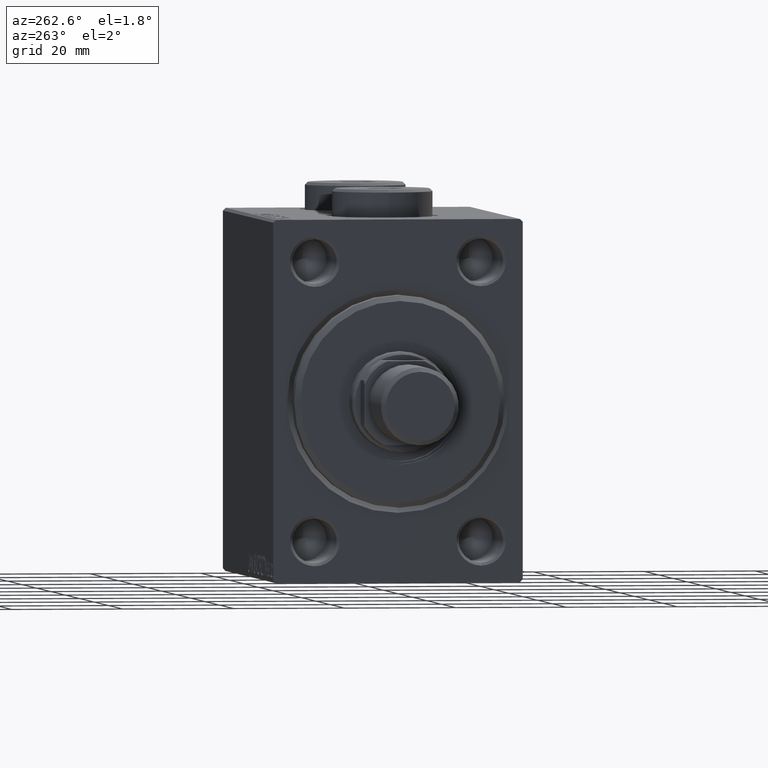
[diagram: clean part render]
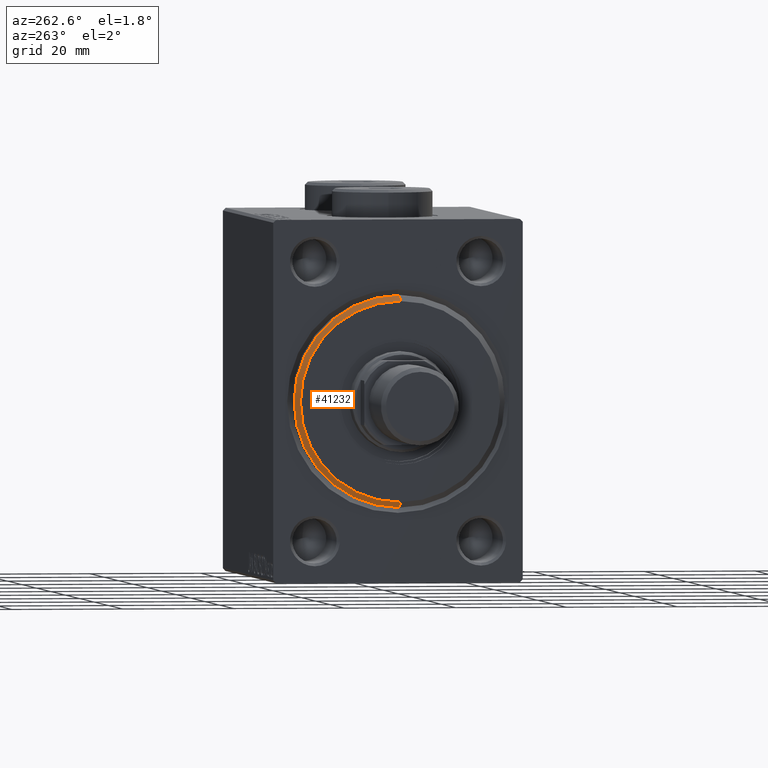
[diagram: same view with one face highlighted and labeled with its STEP entity id]
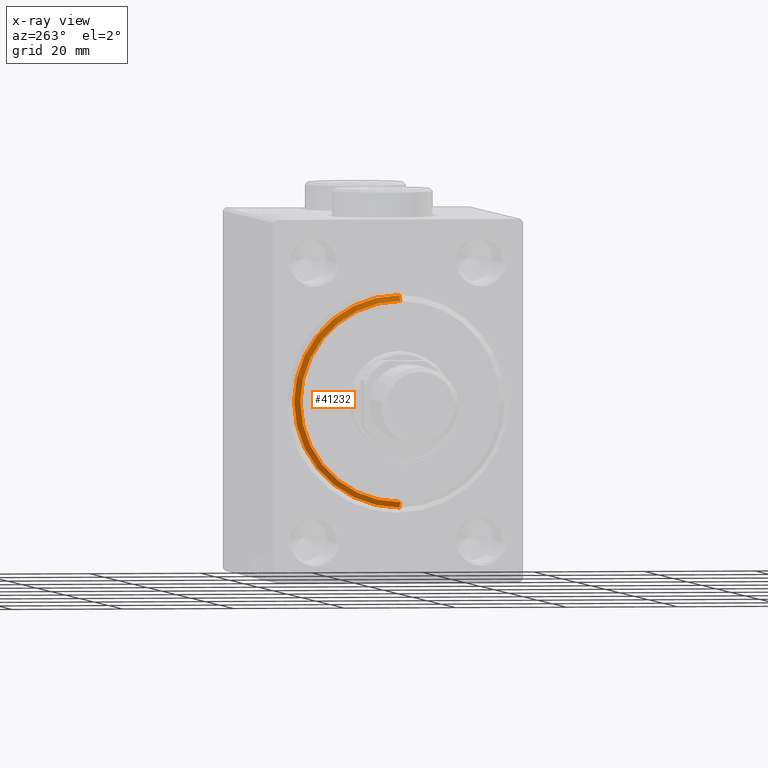
[diagram: x-ray of the same camera — body ghosted, the highlighted face saturated]
A machine part, auxiliary view. The second image highlights one B-rep face of the part: STEP entity #41232.
The next image is the same camera in x-ray: the body ghosted, the highlighted face saturated — about 0% of this face is hidden behind the body in this view.
In plain terms, the highlighted conical surface has half-angle 45 deg.
Its self-contained STEP definition (entity closure, byte-faithful):
#1627 = CARTESIAN_POINT ( 'NONE',  ( 3.000000000000000000, 0.000000000000000000, 17.99999999999999645 ) ) ;
#2000 = CARTESIAN_POINT ( 'NONE',  ( 1.999999999999992228, 0.000000000000000000, 19.00000000000000000 ) ) ;
#2620 = EDGE_CURVE ( 'NONE', #24899, #44869, #8514, .T. ) ;
#5644 = CARTESIAN_POINT ( 'NONE',  ( 3.000000000000000000, 0.000000000000000000, 0.000000000000000000 ) ) ;
#6792 = AXIS2_PLACEMENT_3D ( 'NONE', #5644, #29037, #27958 ) ;
#8514 = CIRCLE ( 'NONE', #10032, 17.99999999999999645 ) ;
#9020 = CARTESIAN_POINT ( 'NONE',  ( 3.000000000000000000, 0.000000000000000000, 0.000000000000000000 ) ) ;
#10032 = AXIS2_PLACEMENT_3D ( 'NONE', #9020, #34353, #40873 ) ;
#10272 = EDGE_CURVE ( 'NONE', #44869, #31092, #27904, .T. ) ;
#13203 = EDGE_CURVE ( 'NONE', #24899, #43748, #41185, .T. ) ;
#17901 = DIRECTION ( 'NONE',  ( -0.7071067811865487940, 8.659560562354918067E-17, -0.7071067811865463515 ) ) ;
#18967 = DIRECTION ( 'NONE',  ( 0.000000000000000000, 0.000000000000000000, -1.000000000000000000 ) ) ;
#21749 = CIRCLE ( 'NONE', #44003, 19.00000000000000000 ) ;
#21998 = CARTESIAN_POINT ( 'NONE',  ( 3.000000000000000000, 2.265596578422603002E-15, -17.99999999999999645 ) ) ;
#22602 = CARTESIAN_POINT ( 'NONE',  ( 3.000000000000000000, 0.000000000000000000, 17.99999999999999645 ) ) ;
#23278 = DIRECTION ( 'NONE',  ( -0.7071067811865487940, 0.000000000000000000, 0.7071067811865463515 ) ) ;
#24193 = CARTESIAN_POINT ( 'NONE',  ( 3.000000000000000000, 2.204364238465235033E-15, -17.99999999999999645 ) ) ;
#24899 = VERTEX_POINT ( 'NONE', #22602 ) ;
#27904 = LINE ( 'NONE', #24193, #33868 ) ;
#27958 = DIRECTION ( 'NONE',  ( 0.000000000000000000, 0.000000000000000000, 1.000000000000000000 ) ) ;
#28971 = CARTESIAN_POINT ( 'NONE',  ( 1.999999999999992228, 0.000000000000000000, 0.000000000000000000 ) ) ;
#29037 = DIRECTION ( 'NONE',  ( -1.000000000000000000, 0.000000000000000000, 0.000000000000000000 ) ) ;
#29055 = CONICAL_SURFACE ( 'NONE', #6792, 17.99999999999999645, 0.7853981633974466137 ) ;
#29462 = ORIENTED_EDGE ( 'NONE', *, *, #10272, .F. ) ;
#29971 = EDGE_LOOP ( 'NONE', ( #29462, #30052, #41270, #40551 ) ) ;
#30052 = ORIENTED_EDGE ( 'NONE', *, *, #2620, .F. ) ;
#31092 = VERTEX_POINT ( 'NONE', #38226 ) ;
#33868 = VECTOR ( 'NONE', #17901, 1000.000000000000000 ) ;
#34353 = DIRECTION ( 'NONE',  ( 1.000000000000000000, -0.000000000000000000, 0.000000000000000000 ) ) ;
#36176 = VECTOR ( 'NONE', #23278, 1000.000000000000000 ) ;
#37501 = FACE_OUTER_BOUND ( 'NONE', #29971, .T. ) ;
#38226 = CARTESIAN_POINT ( 'NONE',  ( 1.999999999999992228, 2.326828918379970970E-15, -19.00000000000000000 ) ) ;
#40551 = ORIENTED_EDGE ( 'NONE', *, *, #45812, .F. ) ;
#40873 = DIRECTION ( 'NONE',  ( 0.000000000000000000, 0.000000000000000000, -1.000000000000000000 ) ) ;
#41185 = LINE ( 'NONE', #1627, #36176 ) ;
#41232 = ADVANCED_FACE ( 'NONE', ( #37501 ), #29055, .T. ) ;
#41270 = ORIENTED_EDGE ( 'NONE', *, *, #13203, .T. ) ;
#43748 = VERTEX_POINT ( 'NONE', #2000 ) ;
#43844 = DIRECTION ( 'NONE',  ( -1.000000000000000000, 0.000000000000000000, 0.000000000000000000 ) ) ;
#44003 = AXIS2_PLACEMENT_3D ( 'NONE', #28971, #43844, #18967 ) ;
#44869 = VERTEX_POINT ( 'NONE', #21998 ) ;
#45812 = EDGE_CURVE ( 'NONE', #31092, #43748, #21749, .T. ) ;